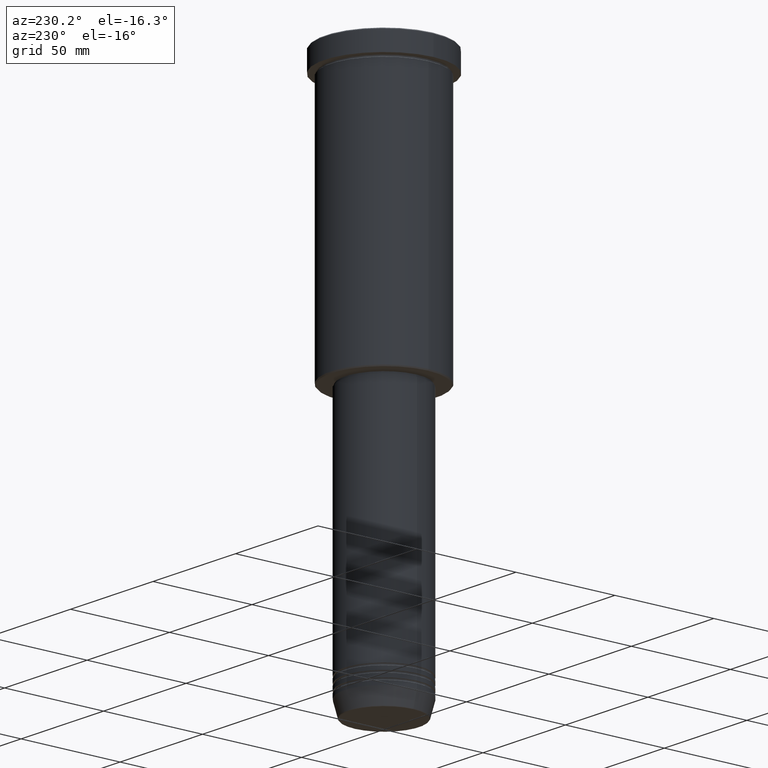
[diagram: clean part render]
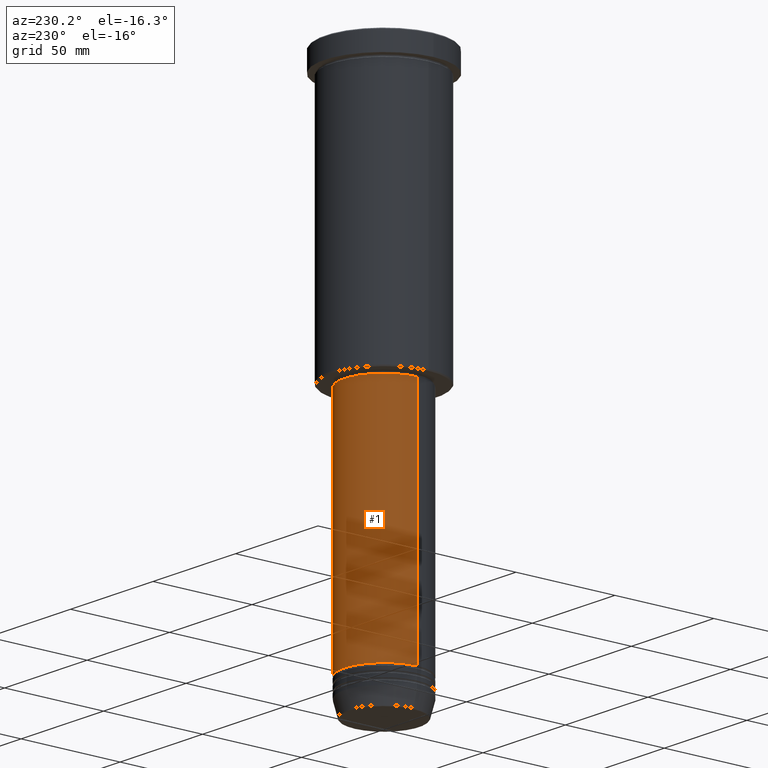
[diagram: same view with one face highlighted and labeled with its STEP entity id]
A machine part, auxiliary view. The second image highlights one B-rep face of the part: STEP entity #1.
In plain terms, the highlighted cylindrical surface (partial cylindrical patch) has radius 20 mm, axis along (-0, -0, 1).
Its self-contained STEP definition (entity closure, byte-faithful):
#1 = ADVANCED_FACE ( 'NONE', ( #877 ), #1067, .T. ) ;
#13 = CARTESIAN_POINT ( 'NONE',  ( 20.00000000000000000, 0.000000000000000000, 0.000000000000000000 ) ) ;
#21 = DIRECTION ( 'NONE',  ( -0.000000000000000000, -0.000000000000000000, 1.000000000000000000 ) ) ;
#32 = CARTESIAN_POINT ( 'NONE',  ( -20.00000000000000000, 2.449293598294706513E-15, -137.0000000000000000 ) ) ;
#43 = AXIS2_PLACEMENT_3D ( 'NONE', #480, #371, #1109 ) ;
#78 = VECTOR ( 'NONE', #21, 1000.000000000000000 ) ;
#160 = LINE ( 'NONE', #622, #78 ) ;
#236 = ORIENTED_EDGE ( 'NONE', *, *, #676, .F. ) ;
#283 = ORIENTED_EDGE ( 'NONE', *, *, #417, .T. ) ;
#333 = ORIENTED_EDGE ( 'NONE', *, *, #691, .F. ) ;
#371 = DIRECTION ( 'NONE',  ( -0.000000000000000000, -0.000000000000000000, 1.000000000000000000 ) ) ;
#394 = DIRECTION ( 'NONE',  ( -0.000000000000000000, -0.000000000000000000, 1.000000000000000000 ) ) ;
#417 = EDGE_CURVE ( 'NONE', #613, #630, #1079, .T. ) ;
#424 = CARTESIAN_POINT ( 'NONE',  ( -20.00000000000000000, 2.449293598294706513E-15, -254.0000000000000000 ) ) ;
#451 = VECTOR ( 'NONE', #1012, 1000.000000000000000 ) ;
#472 = DIRECTION ( 'NONE',  ( -0.000000000000000000, -0.000000000000000000, 1.000000000000000000 ) ) ;
#480 = CARTESIAN_POINT ( 'NONE',  ( 0.000000000000000000, 0.000000000000000000, -254.0000000000000000 ) ) ;
#509 = CARTESIAN_POINT ( 'NONE',  ( 20.00000000000000000, 0.000000000000000000, -137.0000000000000000 ) ) ;
#529 = AXIS2_PLACEMENT_3D ( 'NONE', #839, #472, #634 ) ;
#613 = VERTEX_POINT ( 'NONE', #980 ) ;
#622 = CARTESIAN_POINT ( 'NONE',  ( -20.00000000000000000, 2.449293598294706513E-15, 0.000000000000000000 ) ) ;
#630 = VERTEX_POINT ( 'NONE', #424 ) ;
#634 = DIRECTION ( 'NONE',  ( 1.000000000000000000, 0.000000000000000000, 0.000000000000000000 ) ) ;
#638 = EDGE_CURVE ( 'NONE', #630, #1003, #160, .T. ) ;
#676 = EDGE_CURVE ( 'NONE', #949, #1003, #1057, .T. ) ;
#691 = EDGE_CURVE ( 'NONE', #613, #949, #933, .T. ) ;
#765 = EDGE_LOOP ( 'NONE', ( #283, #951, #236, #333 ) ) ;
#798 = AXIS2_PLACEMENT_3D ( 'NONE', #1049, #394, #808 ) ;
#808 = DIRECTION ( 'NONE',  ( 1.000000000000000000, 0.000000000000000000, 0.000000000000000000 ) ) ;
#839 = CARTESIAN_POINT ( 'NONE',  ( 0.000000000000000000, 0.000000000000000000, -137.0000000000000000 ) ) ;
#877 = FACE_OUTER_BOUND ( 'NONE', #765, .T. ) ;
#933 = LINE ( 'NONE', #13, #451 ) ;
#949 = VERTEX_POINT ( 'NONE', #509 ) ;
#951 = ORIENTED_EDGE ( 'NONE', *, *, #638, .T. ) ;
#980 = CARTESIAN_POINT ( 'NONE',  ( 20.00000000000000000, 0.000000000000000000, -254.0000000000000000 ) ) ;
#1003 = VERTEX_POINT ( 'NONE', #32 ) ;
#1012 = DIRECTION ( 'NONE',  ( -0.000000000000000000, -0.000000000000000000, 1.000000000000000000 ) ) ;
#1049 = CARTESIAN_POINT ( 'NONE',  ( 0.000000000000000000, 0.000000000000000000, 0.000000000000000000 ) ) ;
#1057 = CIRCLE ( 'NONE', #529, 20.00000000000000000 ) ;
#1067 = CYLINDRICAL_SURFACE ( 'NONE', #798, 20.00000000000000000 ) ;
#1079 = CIRCLE ( 'NONE', #43, 20.00000000000000000 ) ;
#1109 = DIRECTION ( 'NONE',  ( 1.000000000000000000, 0.000000000000000000, 0.000000000000000000 ) ) ;